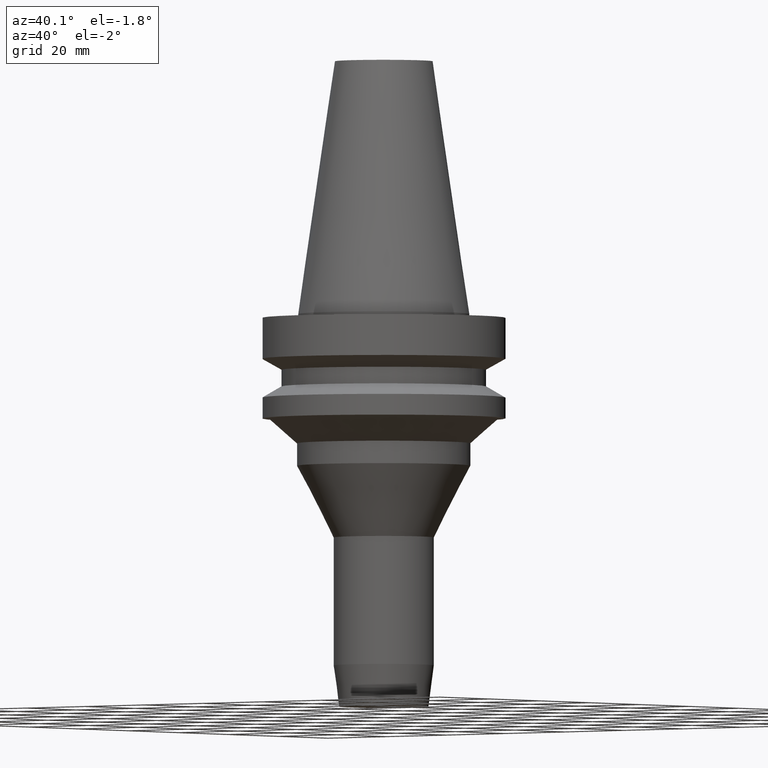
[diagram: clean part render]
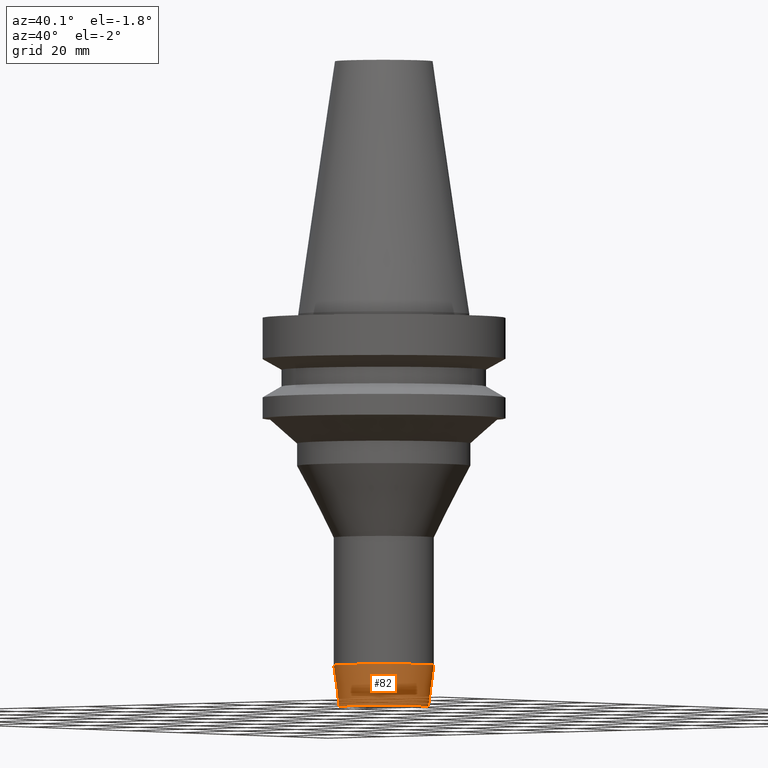
[diagram: same view with one face highlighted and labeled with its STEP entity id]
A machine part, auxiliary view. The second image highlights one B-rep face of the part: STEP entity #82.
In plain terms, the highlighted conical surface has half-angle 7.5 deg.
Its self-contained STEP definition (entity closure, byte-faithful):
#69=EDGE_CURVE('Unnamed[1]',#174,#174,#175,.T.);
#82=ADVANCED_FACE('Unnamed[1]',(#194,#195),#196,.T.);
#84=EDGE_CURVE('Unnamed[1]',#198,#198,#199,.T.);
#174=VERTEX_POINT('',#312);
#175=CIRCLE('',#313,13.0000000000003);
#194=FACE_BOUND('',#337,.T.);
#195=FACE_BOUND('',#338,.T.);
#196=CONICAL_SURFACE('',#339,12.2979216258449,0.130899693899574);
#198=VERTEX_POINT('',#342);
#199=CIRCLE('',#343,11.5958432516896);
#312=CARTESIAN_POINT('',(5.56812429463614E-015,13.0000000000003,-90.9343706040449));
#313=AXIS2_PLACEMENT_3D('',#466,#467,#468);
#337=EDGE_LOOP('',(#488));
#338=EDGE_LOOP('',(#489));
#339=AXIS2_PLACEMENT_3D('',#490,#491,#492);
#342=CARTESIAN_POINT('',(6.22120573966471E-015,11.5958432516895,-101.599999999937));
#343=AXIS2_PLACEMENT_3D('',#493,#494,#495);
#466=CARTESIAN_POINT('',(5.56812429463614E-015,-1.07505159318787E-014,-90.9343706040449));
#467=DIRECTION('',(6.12323399573677E-017,-5.58802637008037E-016,-1.0));
#468=DIRECTION('',(2.93896403075806E-032,1.0,-5.58802637008037E-016));
#488=ORIENTED_EDGE('',*,*,#84,.F.);
#489=ORIENTED_EDGE('',*,*,#69,.T.);
#490=CARTESIAN_POINT('',(5.89466501715042E-015,-1.37305068477662E-014,-96.267185301991));
#491=DIRECTION('',(-6.12323399573676E-017,5.58802637008037E-016,1.0));
#492=DIRECTION('',(2.93896403075806E-032,1.0,-5.58802637008037E-016));
#493=CARTESIAN_POINT('',(6.22120573966471E-015,-1.67104977636537E-014,-101.599999999937));
#494=DIRECTION('',(6.12323399573676E-017,-5.58802637008037E-016,-1.0));
#495=DIRECTION('',(2.93896403075806E-032,1.0,-5.58802637008037E-016));